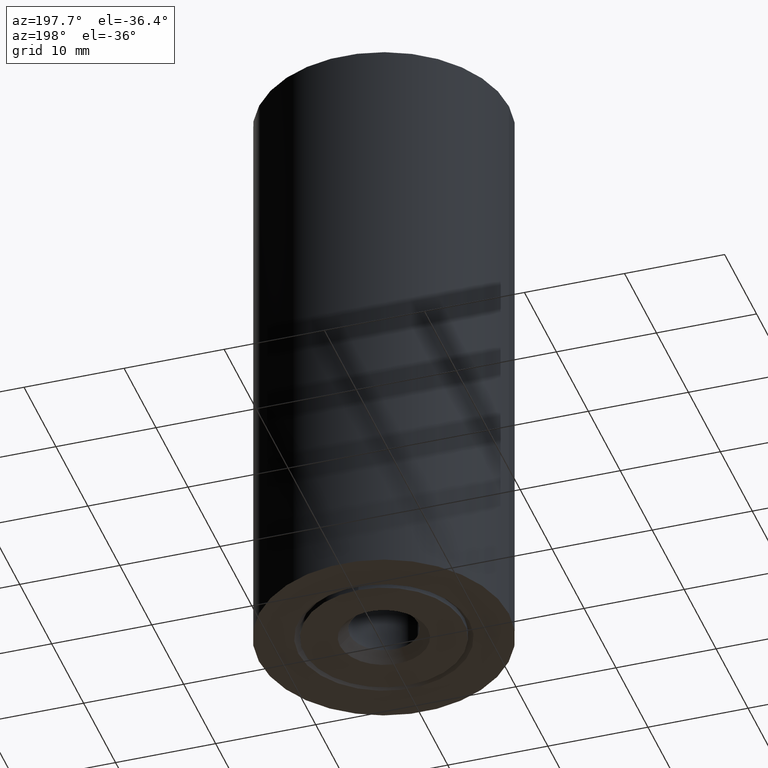
[diagram: clean part render]
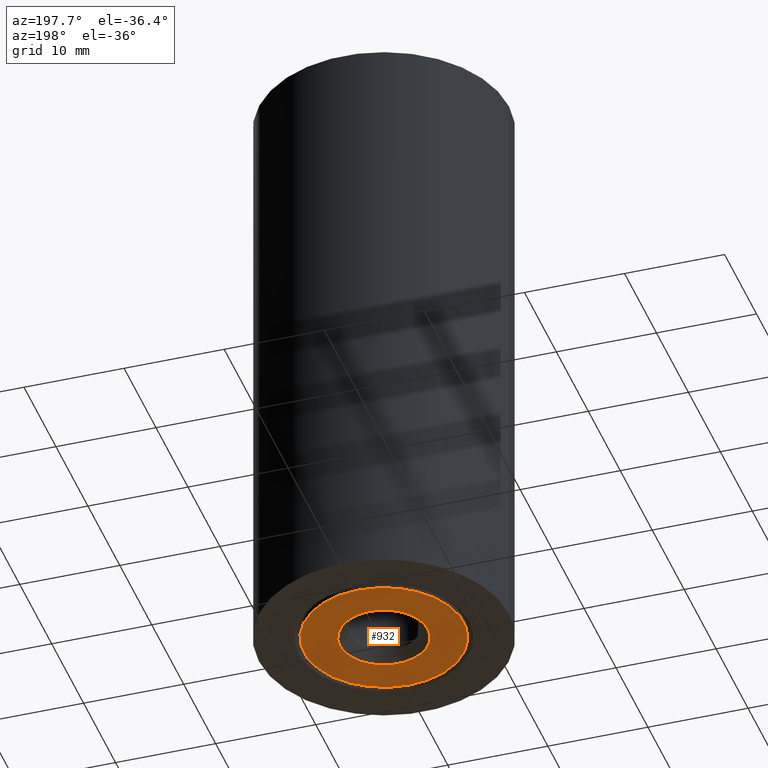
[diagram: same view with one face highlighted and labeled with its STEP entity id]
A machine part, auxiliary view. The second image highlights one B-rep face of the part: STEP entity #932.
In plain terms, the highlighted planar face has unit normal (0, -0, -1).
Its self-contained STEP definition (entity closure, byte-faithful):
#160 = CARTESIAN_POINT ( 'NONE',  ( 0.0000000000000000000, -1.542322579012192500E-016, -23.50000000000000000 ) ) ;
#249 = DIRECTION ( 'NONE',  ( 0.0000000000000000000, -6.563074804307201300E-018, -1.000000000000000000 ) ) ;
#379 = CARTESIAN_POINT ( 'NONE',  ( -4.399999999999997700, 0.0000000000000000000, -23.50000000000000000 ) ) ;
#514 = CARTESIAN_POINT ( 'NONE',  ( 4.399999999999997700, 5.388445916248351100E-016, -23.50000000000000000 ) ) ;
#932 = ADVANCED_FACE ( 'NONE', ( #5852, #7681 ), #6485, .T. ) ;
#1217 = VERTEX_POINT ( 'NONE', #3211 ) ;
#1404 = AXIS2_PLACEMENT_3D ( 'NONE', #4382, #249, #8670 ) ;
#1603 = ORIENTED_EDGE ( 'NONE', *, *, #4590, .T. ) ;
#2626 = DIRECTION ( 'NONE',  ( 0.0000000000000000000, 1.000000000000000000, 0.0000000000000000000 ) ) ;
#2654 = CIRCLE ( 'NONE', #7011, 4.399999999999997700 ) ;
#2869 = DIRECTION ( 'NONE',  ( 0.0000000000000000000, 1.000000000000000000, 0.0000000000000000000 ) ) ;
#3190 = EDGE_CURVE ( 'NONE', #10425, #12159, #2654, .T. ) ;
#3211 = CARTESIAN_POINT ( 'NONE',  ( 9.797174393178825700E-016, -8.000000000000000000, -23.50000000000000000 ) ) ;
#3938 = CIRCLE ( 'NONE', #7667, 8.000000000000000000 ) ;
#4302 = DIRECTION ( 'NONE',  ( -0.0000000000000000000, -6.563074804307201300E-018, -1.000000000000000000 ) ) ;
#4382 = CARTESIAN_POINT ( 'NONE',  ( 0.0000000000000000000, 8.000000000000000000, -23.50000000000000000 ) ) ;
#4424 = CARTESIAN_POINT ( 'NONE',  ( 0.0000000000000000000, 8.000000000000000000, -23.50000000000000000 ) ) ;
#4590 = EDGE_CURVE ( 'NONE', #12159, #10425, #5834, .T. ) ;
#4699 = CARTESIAN_POINT ( 'NONE',  ( 0.0000000000000000000, 0.0000000000000000000, -23.50000000000000000 ) ) ;
#4707 = EDGE_CURVE ( 'NONE', #1217, #11749, #13098, .T. ) ;
#5834 = CIRCLE ( 'NONE', #9061, 4.399999999999997700 ) ;
#5848 = CARTESIAN_POINT ( 'NONE',  ( 0.0000000000000000000, -1.542322579012192500E-016, -23.50000000000000000 ) ) ;
#5852 = FACE_BOUND ( 'NONE', #10550, .T. ) ;
#6485 = PLANE ( 'NONE',  #1404 ) ;
#6672 = ORIENTED_EDGE ( 'NONE', *, *, #13218, .T. ) ;
#6688 = DIRECTION ( 'NONE',  ( 0.0000000000000000000, 6.563074804307201300E-018, 1.000000000000000000 ) ) ;
#6976 = DIRECTION ( 'NONE',  ( 0.0000000000000000000, 6.563074804307201300E-018, 1.000000000000000000 ) ) ;
#7011 = AXIS2_PLACEMENT_3D ( 'NONE', #10096, #6976, #2626 ) ;
#7090 = EDGE_LOOP ( 'NONE', ( #6672, #8933 ) ) ;
#7667 = AXIS2_PLACEMENT_3D ( 'NONE', #160, #4302, #10678 ) ;
#7681 = FACE_OUTER_BOUND ( 'NONE', #7090, .T. ) ;
#8670 = DIRECTION ( 'NONE',  ( 0.0000000000000000000, 1.000000000000000000, -6.563074804307201300E-018 ) ) ;
#8933 = ORIENTED_EDGE ( 'NONE', *, *, #4707, .T. ) ;
#9061 = AXIS2_PLACEMENT_3D ( 'NONE', #4699, #6688, #12012 ) ;
#10096 = CARTESIAN_POINT ( 'NONE',  ( 0.0000000000000000000, 0.0000000000000000000, -23.50000000000000000 ) ) ;
#10187 = AXIS2_PLACEMENT_3D ( 'NONE', #5848, #12235, #2869 ) ;
#10425 = VERTEX_POINT ( 'NONE', #514 ) ;
#10550 = EDGE_LOOP ( 'NONE', ( #1603, #13281 ) ) ;
#10678 = DIRECTION ( 'NONE',  ( 0.0000000000000000000, 1.000000000000000000, 0.0000000000000000000 ) ) ;
#11749 = VERTEX_POINT ( 'NONE', #4424 ) ;
#12012 = DIRECTION ( 'NONE',  ( 0.0000000000000000000, 1.000000000000000000, 0.0000000000000000000 ) ) ;
#12159 = VERTEX_POINT ( 'NONE', #379 ) ;
#12235 = DIRECTION ( 'NONE',  ( -0.0000000000000000000, -6.563074804307201300E-018, -1.000000000000000000 ) ) ;
#13098 = CIRCLE ( 'NONE', #10187, 8.000000000000000000 ) ;
#13218 = EDGE_CURVE ( 'NONE', #11749, #1217, #3938, .T. ) ;
#13281 = ORIENTED_EDGE ( 'NONE', *, *, #3190, .T. ) ;